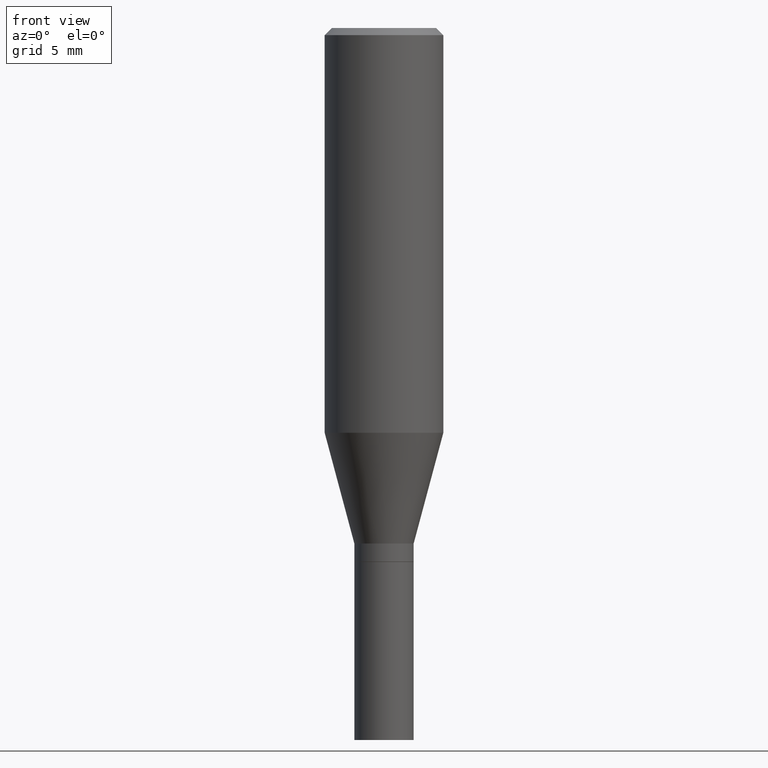
[diagram: clean part render]
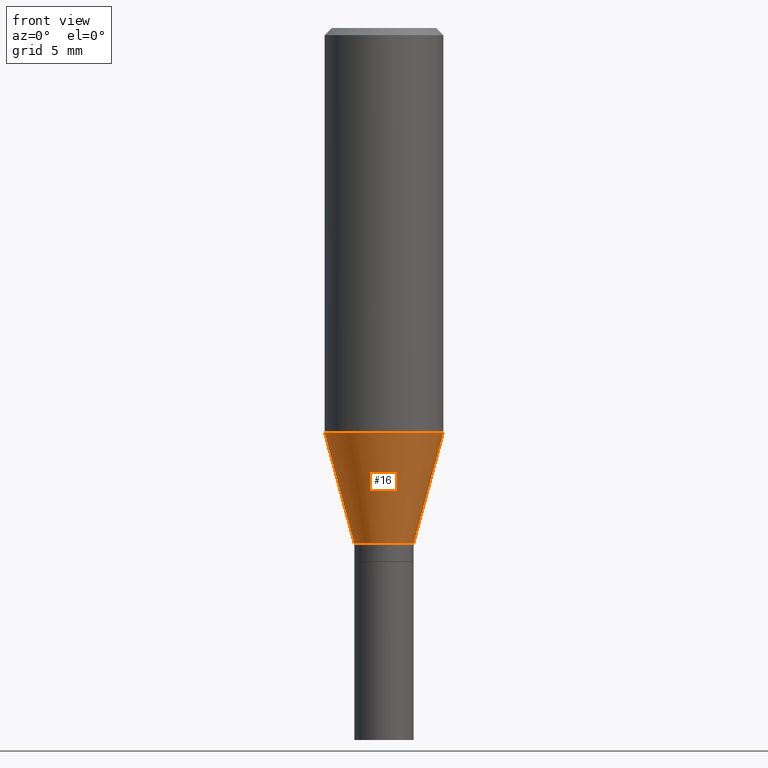
[diagram: same view with one face highlighted and labeled with its STEP entity id]
A machine part, front view. The second image highlights one B-rep face of the part: STEP entity #16.
In plain terms, the highlighted conical surface has half-angle 15 deg.
Its self-contained STEP definition (entity closure, byte-faithful):
#4 = CARTESIAN_POINT ( 'NONE',  ( 2.655779123517058654E-29, -3.791748733983656424E-15, -1.086000000000000076 ) ) ;
#6 = DIRECTION ( 'NONE',  ( -2.445468806185136597E-29, 3.491481338843145583E-15, 1.000000000000000000 ) ) ;
#16 = ADVANCED_FACE ( 'NONE', ( #143 ), #316, .T. ) ;
#24 = AXIS2_PLACEMENT_3D ( 'NONE', #4, #137, #34 ) ;
#29 = ORIENTED_EDGE ( 'NONE', *, *, #229, .F. ) ;
#34 = DIRECTION ( 'NONE',  ( 1.000000000000000000, -6.982962677686264344E-15, 0.000000000000000000 ) ) ;
#44 = VECTOR ( 'NONE', #398, 39.37007874015747433 ) ;
#52 = CARTESIAN_POINT ( 'NONE',  ( -0.06250000000000019429, -2.718415364513525405E-15, -1.086000000000000076 ) ) ;
#54 = EDGE_CURVE ( 'NONE', #401, #391, #333, .T. ) ;
#67 = VERTEX_POINT ( 'NONE', #353 ) ;
#75 = EDGE_LOOP ( 'NONE', ( #29, #411, #315, #200 ) ) ;
#81 = CIRCLE ( 'NONE', #149, 0.1250000000000000000 ) ;
#102 = EDGE_CURVE ( 'NONE', #147, #401, #141, .T. ) ;
#137 = DIRECTION ( 'NONE',  ( -2.445468806185136597E-29, 3.491481338843145583E-15, 1.000000000000000000 ) ) ;
#141 = CIRCLE ( 'NONE', #429, 0.06250000000000019429 ) ;
#142 = DIRECTION ( 'NONE',  ( 1.000000000000000000, -6.982962677686266711E-15, 0.000000000000000000 ) ) ;
#143 = FACE_OUTER_BOUND ( 'NONE', #75, .T. ) ;
#147 = VERTEX_POINT ( 'NONE', #52 ) ;
#149 = AXIS2_PLACEMENT_3D ( 'NONE', #299, #208, #142 ) ;
#168 = CARTESIAN_POINT ( 'NONE',  ( 0.06250000000000019429, -4.228183901339049671E-15, -1.086000000000000076 ) ) ;
#171 = DIRECTION ( 'NONE',  ( -0.2588190451025213501, 5.211531920934551042E-15, 0.9659258262890682012 ) ) ;
#200 = ORIENTED_EDGE ( 'NONE', *, *, #342, .F. ) ;
#208 = DIRECTION ( 'NONE',  ( -2.445468806185136597E-29, 3.491481338843145583E-15, 1.000000000000000000 ) ) ;
#229 = EDGE_CURVE ( 'NONE', #147, #67, #354, .T. ) ;
#260 = CARTESIAN_POINT ( 'NONE',  ( 2.655779123517058654E-29, -3.791748733983656424E-15, -1.086000000000000076 ) ) ;
#299 = CARTESIAN_POINT ( 'NONE',  ( 2.085365758954078334E-29, -2.977349624593584208E-15, -0.8527468245269465008 ) ) ;
#315 = ORIENTED_EDGE ( 'NONE', *, *, #54, .T. ) ;
#316 = CONICAL_SURFACE ( 'NONE', #24, 0.06250000000000019429, 0.2617993877991500740 ) ;
#333 = LINE ( 'NONE', #447, #44 ) ;
#342 = EDGE_CURVE ( 'NONE', #67, #391, #81, .T. ) ;
#353 = CARTESIAN_POINT ( 'NONE',  ( -0.1250000000000000000, -2.089171204893458581E-15, -0.8527468245269465008 ) ) ;
#354 = LINE ( 'NONE', #359, #393 ) ;
#359 = CARTESIAN_POINT ( 'NONE',  ( -0.06250000000000019429, -3.347659524133592230E-15, -1.086000000000000076 ) ) ;
#391 = VERTEX_POINT ( 'NONE', #413 ) ;
#393 = VECTOR ( 'NONE', #171, 39.37007874015747433 ) ;
#398 = DIRECTION ( 'NONE',  ( 0.2588190451025213501, 1.565188264969621968E-15, 0.9659258262890682012 ) ) ;
#401 = VERTEX_POINT ( 'NONE', #168 ) ;
#411 = ORIENTED_EDGE ( 'NONE', *, *, #102, .T. ) ;
#413 = CARTESIAN_POINT ( 'NONE',  ( 0.1250000000000000000, -3.850219959304367152E-15, -0.8527468245269465008 ) ) ;
#429 = AXIS2_PLACEMENT_3D ( 'NONE', #260, #6, #438 ) ;
#438 = DIRECTION ( 'NONE',  ( 1.000000000000000000, -6.982962677686264344E-15, 0.000000000000000000 ) ) ;
#447 = CARTESIAN_POINT ( 'NONE',  ( 0.06250000000000019429, -4.228183901339049671E-15, -1.086000000000000076 ) ) ;